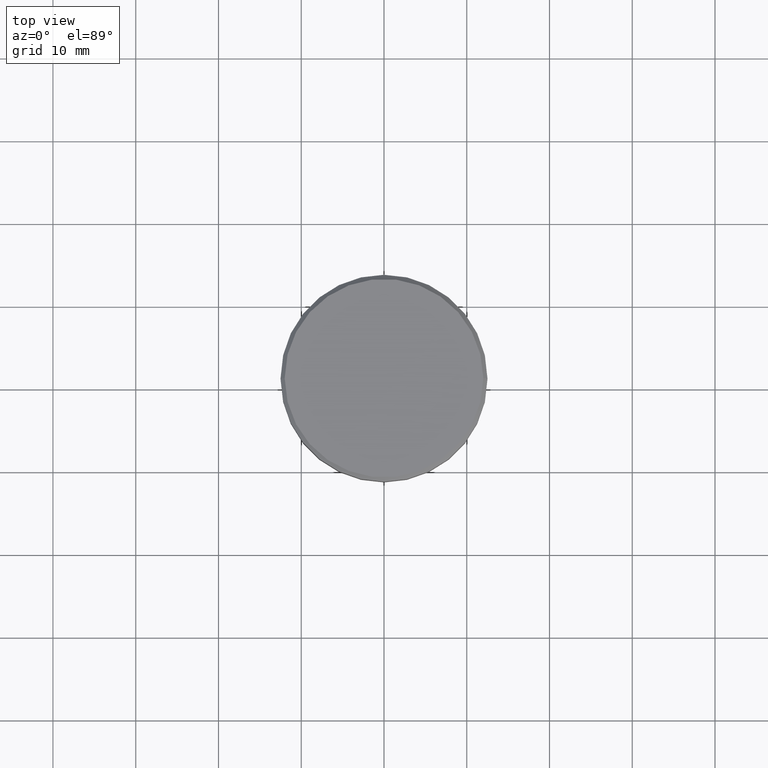
[diagram: clean part render]
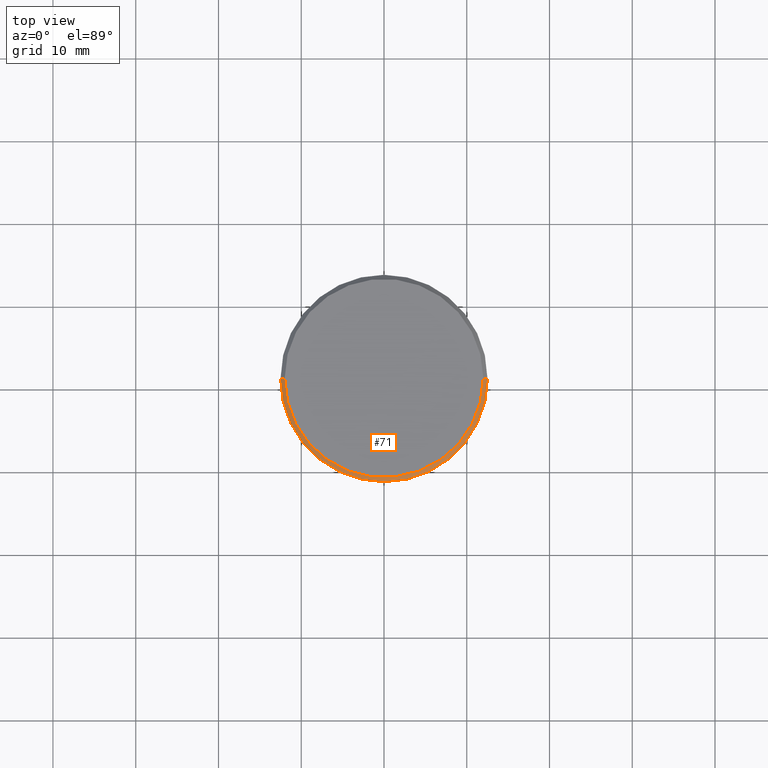
[diagram: same view with one face highlighted and labeled with its STEP entity id]
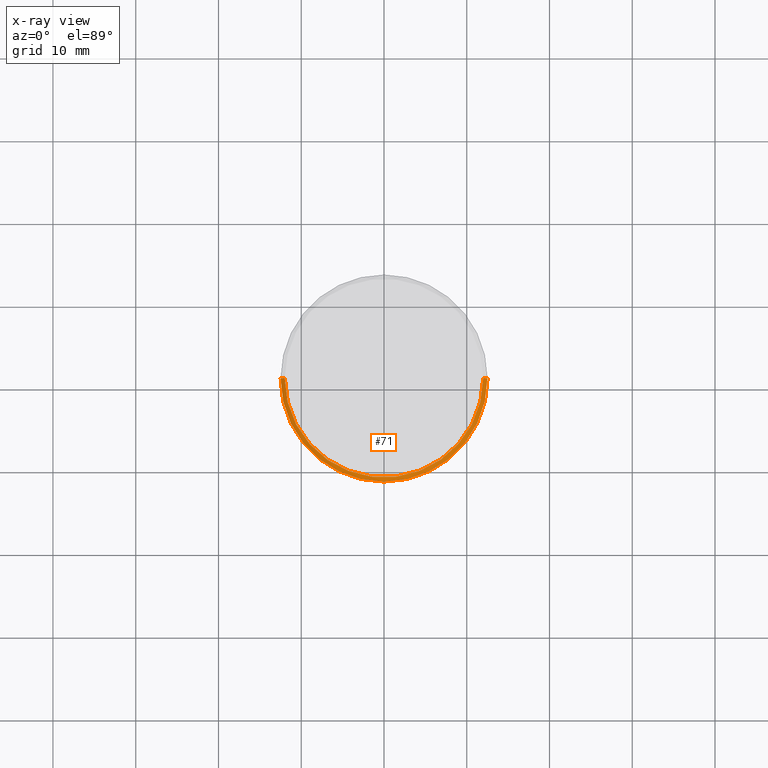
[diagram: x-ray of the same camera — body ghosted, the highlighted face saturated]
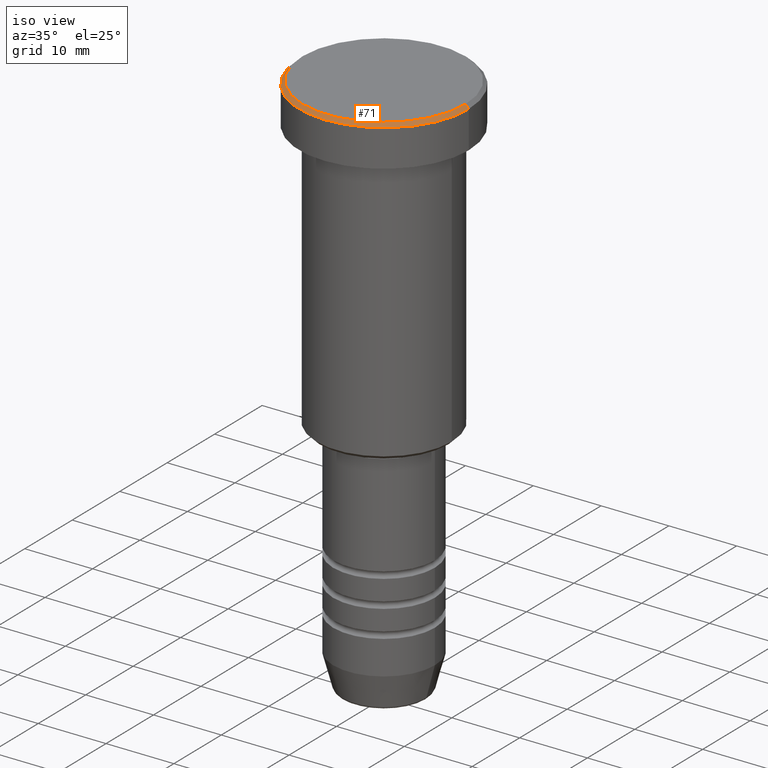
[diagram: same view with one face highlighted and labeled with its STEP entity id]
A machine part, top view. The second image highlights one B-rep face of the part: STEP entity #71.
The next image is the same camera in x-ray: the body ghosted, the highlighted face saturated — about 0% of this face is hidden behind the body in this view.
A second angle (iso view) of the same face is appended — the face is thin or edge-on in the first view.
In plain terms, the highlighted conical surface has half-angle 45 deg.
Its self-contained STEP definition (entity closure, byte-faithful):
#8 = AXIS2_PLACEMENT_3D ( 'NONE', #651, #569, #1118 ) ;
#46 = EDGE_CURVE ( 'NONE', #879, #899, #980, .T. ) ;
#66 = DIRECTION ( 'NONE',  ( 1.000000000000000000, 0.000000000000000000, 0.000000000000000000 ) ) ;
#71 = ADVANCED_FACE ( 'NONE', ( #557 ), #680, .T. ) ;
#100 = ORIENTED_EDGE ( 'NONE', *, *, #233, .F. ) ;
#204 = EDGE_LOOP ( 'NONE', ( #100, #671, #1058, #861 ) ) ;
#233 = EDGE_CURVE ( 'NONE', #370, #879, #411, .T. ) ;
#266 = CARTESIAN_POINT ( 'NONE',  ( 12.50000000000000000, 0.000000000000000000, -0.5000000000000056621 ) ) ;
#370 = VERTEX_POINT ( 'NONE', #514 ) ;
#384 = VERTEX_POINT ( 'NONE', #442 ) ;
#411 = LINE ( 'NONE', #422, #775 ) ;
#422 = CARTESIAN_POINT ( 'NONE',  ( 11.99999999999999645, 1.469576158976823553E-15, 0.000000000000000000 ) ) ;
#442 = CARTESIAN_POINT ( 'NONE',  ( -11.99999999999999645, 0.000000000000000000, 0.000000000000000000 ) ) ;
#446 = LINE ( 'NONE', #604, #1033 ) ;
#448 = CARTESIAN_POINT ( 'NONE',  ( 0.000000000000000000, 0.000000000000000000, -0.5000000000000056621 ) ) ;
#470 = AXIS2_PLACEMENT_3D ( 'NONE', #448, #1025, #564 ) ;
#514 = CARTESIAN_POINT ( 'NONE',  ( 11.99999999999999645, 1.500192328955507537E-15, 0.000000000000000000 ) ) ;
#557 = FACE_OUTER_BOUND ( 'NONE', #204, .T. ) ;
#564 = DIRECTION ( 'NONE',  ( 1.000000000000000000, 0.000000000000000000, 0.000000000000000000 ) ) ;
#569 = DIRECTION ( 'NONE',  ( 0.000000000000000000, 0.000000000000000000, -1.000000000000000000 ) ) ;
#604 = CARTESIAN_POINT ( 'NONE',  ( -11.99999999999999645, 0.000000000000000000, 0.000000000000000000 ) ) ;
#639 = CIRCLE ( 'NONE', #888, 11.99999999999999645 ) ;
#651 = CARTESIAN_POINT ( 'NONE',  ( 0.000000000000000000, 0.000000000000000000, 0.000000000000000000 ) ) ;
#671 = ORIENTED_EDGE ( 'NONE', *, *, #1131, .F. ) ;
#680 = CONICAL_SURFACE ( 'NONE', #8, 11.99999999999999645, 0.7853981633974466137 ) ;
#691 = EDGE_CURVE ( 'NONE', #384, #899, #446, .T. ) ;
#775 = VECTOR ( 'NONE', #1123, 1000.000000000000000 ) ;
#821 = CARTESIAN_POINT ( 'NONE',  ( 0.000000000000000000, 0.000000000000000000, 0.000000000000000000 ) ) ;
#829 = CARTESIAN_POINT ( 'NONE',  ( -12.50000000000000000, 1.530808498934191521E-15, -0.5000000000000056621 ) ) ;
#861 = ORIENTED_EDGE ( 'NONE', *, *, #46, .F. ) ;
#879 = VERTEX_POINT ( 'NONE', #266 ) ;
#888 = AXIS2_PLACEMENT_3D ( 'NONE', #821, #1182, #66 ) ;
#899 = VERTEX_POINT ( 'NONE', #829 ) ;
#980 = CIRCLE ( 'NONE', #470, 12.50000000000000000 ) ;
#1025 = DIRECTION ( 'NONE',  ( 0.000000000000000000, 0.000000000000000000, -1.000000000000000000 ) ) ;
#1033 = VECTOR ( 'NONE', #1079, 1000.000000000000000 ) ;
#1058 = ORIENTED_EDGE ( 'NONE', *, *, #691, .T. ) ;
#1079 = DIRECTION ( 'NONE',  ( -0.7071067811865463515, 0.000000000000000000, -0.7071067811865487940 ) ) ;
#1118 = DIRECTION ( 'NONE',  ( -1.000000000000000000, 0.000000000000000000, 0.000000000000000000 ) ) ;
#1123 = DIRECTION ( 'NONE',  ( 0.7071067811865463515, 8.659560562354919300E-17, -0.7071067811865487940 ) ) ;
#1131 = EDGE_CURVE ( 'NONE', #384, #370, #639, .T. ) ;
#1182 = DIRECTION ( 'NONE',  ( -0.000000000000000000, -0.000000000000000000, 1.000000000000000000 ) ) ;